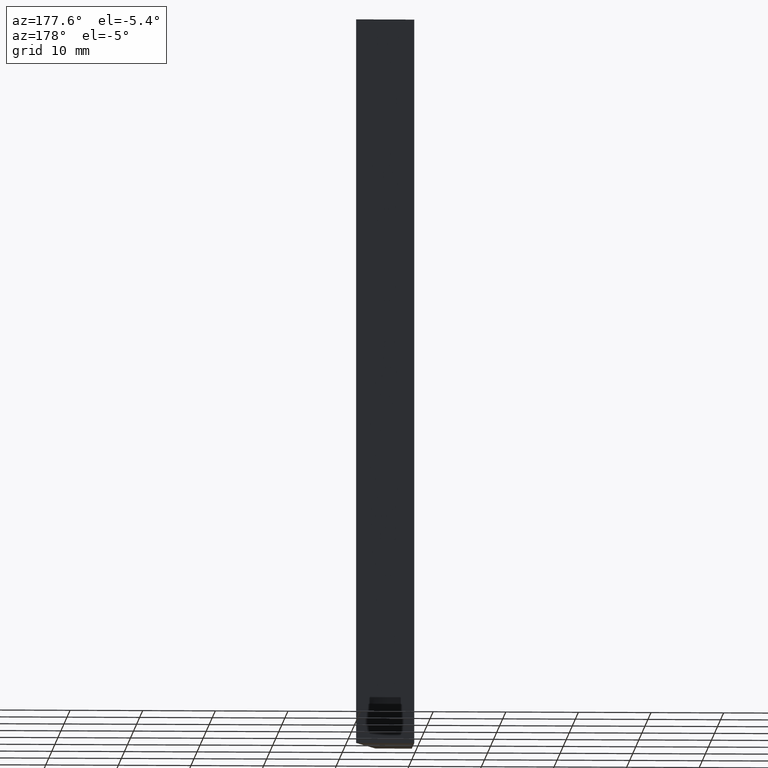
[diagram: clean part render]
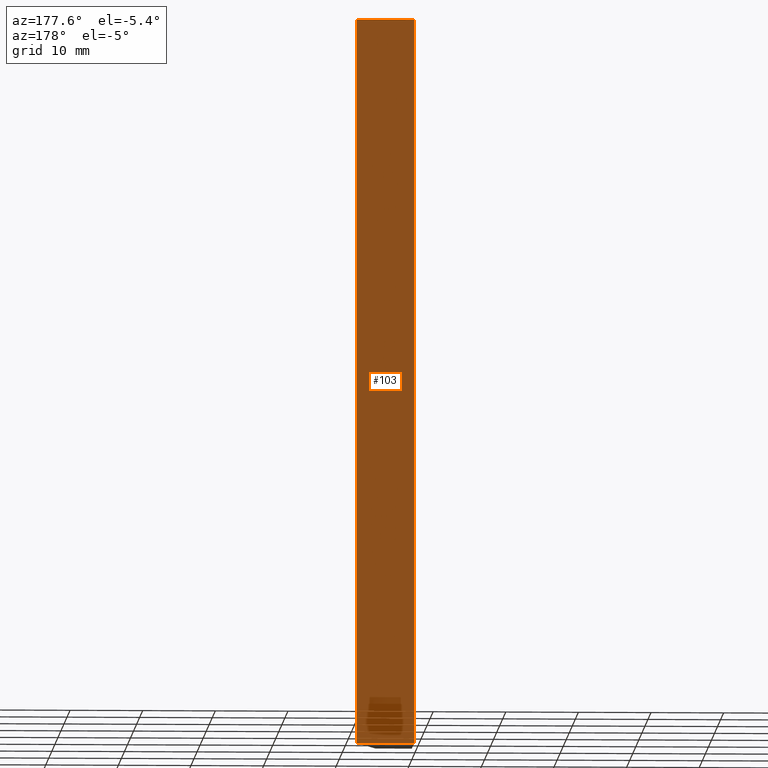
[diagram: same view with one face highlighted and labeled with its STEP entity id]
A machine part, auxiliary view. The second image highlights one B-rep face of the part: STEP entity #103.
In plain terms, the highlighted planar face has unit normal (-0, 1, 0).
Its self-contained STEP definition (entity closure, byte-faithful):
#17=FACE_OUTER_BOUND('',#23,.T.);
#23=EDGE_LOOP('',(#76,#77,#78,#79));
#30=LINE('',#171,#42);
#32=LINE('',#176,#44);
#33=LINE('',#177,#45);
#34=LINE('',#178,#46);
#42=VECTOR('',#143,10.);
#44=VECTOR('',#147,10.);
#45=VECTOR('',#148,10.);
#46=VECTOR('',#149,10.);
#54=VERTEX_POINT('',#168);
#55=VERTEX_POINT('',#170);
#56=VERTEX_POINT('',#174);
#57=VERTEX_POINT('',#175);
#62=EDGE_CURVE('',#55,#54,#30,.T.);
#64=EDGE_CURVE('',#56,#57,#32,.T.);
#65=EDGE_CURVE('',#57,#55,#33,.T.);
#66=EDGE_CURVE('',#56,#54,#34,.T.);
#76=ORIENTED_EDGE('',*,*,#64,.T.);
#77=ORIENTED_EDGE('',*,*,#65,.T.);
#78=ORIENTED_EDGE('',*,*,#62,.T.);
#79=ORIENTED_EDGE('',*,*,#66,.F.);
#97=PLANE('',#132);
#103=ADVANCED_FACE('',(#17),#97,.T.);
#132=AXIS2_PLACEMENT_3D('',#173,#145,#146);
#143=DIRECTION('',(-1.,-2.77555756156289E-16,0.));
#145=DIRECTION('center_axis',(-2.77555756156289E-16,1.,0.));
#146=DIRECTION('ref_axis',(0.,0.,1.));
#147=DIRECTION('',(1.,2.77555756156289E-16,0.));
#148=DIRECTION('',(0.,0.,-1.));
#149=DIRECTION('',(0.,0.,-1.));
#168=CARTESIAN_POINT('',(0.,8.00000000000001,-50.));
#170=CARTESIAN_POINT('',(8.,8.00000000000001,-50.));
#171=CARTESIAN_POINT('',(0.,8.00000000000001,-50.));
#173=CARTESIAN_POINT('Origin',(0.,8.00000000000001,0.));
#174=CARTESIAN_POINT('',(0.,8.00000000000001,50.));
#175=CARTESIAN_POINT('',(8.,8.00000000000001,50.));
#176=CARTESIAN_POINT('',(0.,8.00000000000001,50.));
#177=CARTESIAN_POINT('',(8.,8.00000000000001,0.));
#178=CARTESIAN_POINT('',(0.,8.00000000000001,0.));